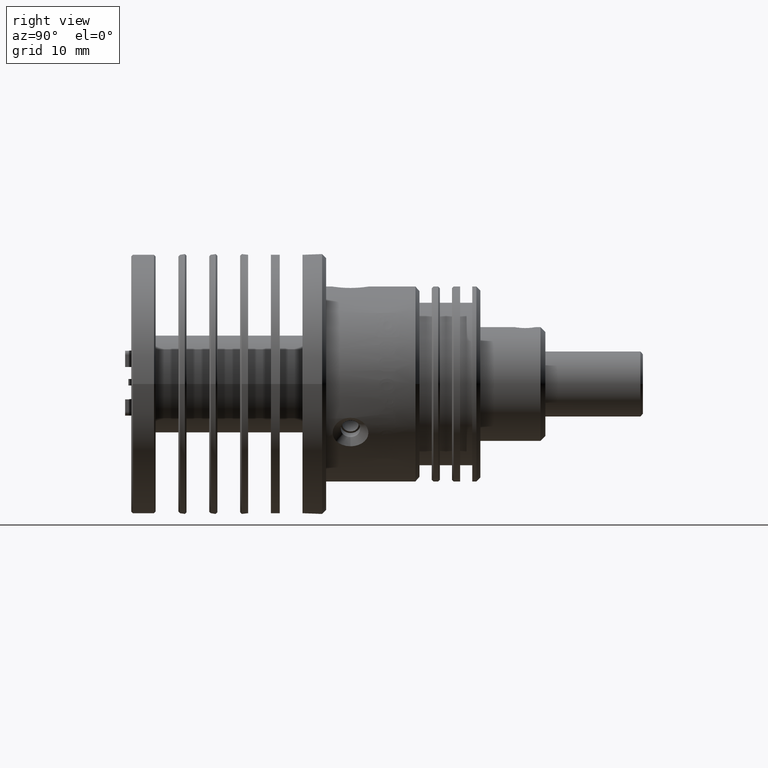
[diagram: clean part render]
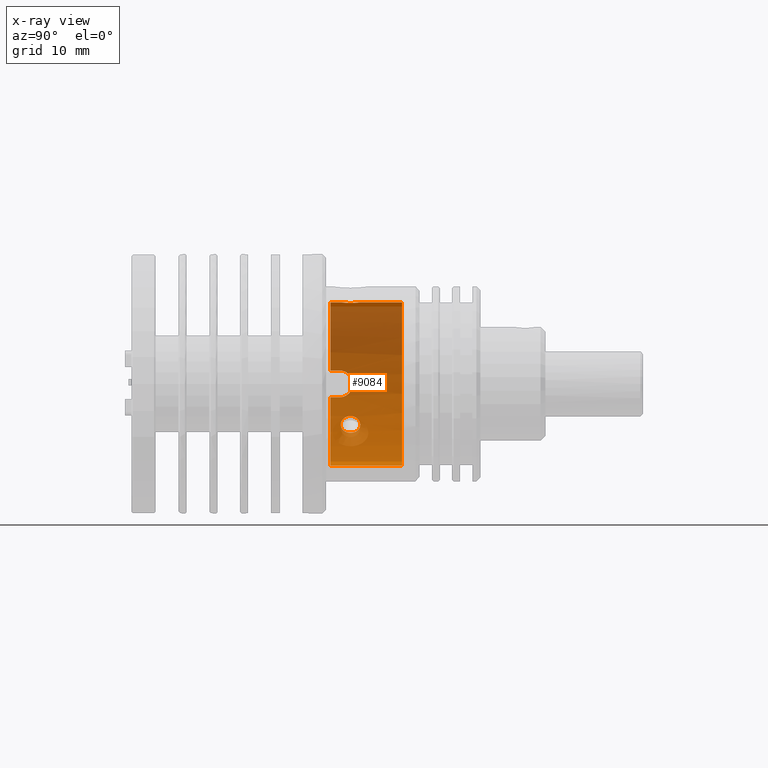
[diagram: x-ray — body ghosted, one internal face saturated and labeled with its STEP entity id]
A machine part, right view, then the same camera in x-ray: the body is ghosted and one INTERNAL B-rep face — a face not visible from any outside direction — is saturated and labeled: STEP entity #9084.
In plain terms, the highlighted cylindrical surface (partial cylindrical patch) has radius 10.05 mm, axis along (-0, -1, -0).
Its self-contained STEP definition (entity closure, byte-faithful):
#117 = DIRECTION ( 'NONE',  ( 0.0000000000000000000, 0.0000000000000000000, -1.000000000000000000 ) ) ;
#152 = CARTESIAN_POINT ( 'NONE',  ( -6.207370715078661200, -11.51504917344037600, -14.06261117191884200 ) ) ;
#215 = CARTESIAN_POINT ( 'NONE',  ( -5.811882643999053900, -11.66607838531415300, -14.71343885816804000 ) ) ;
#274 = CARTESIAN_POINT ( 'NONE',  ( -6.415873048750138500, -11.66642266347083300, -13.66722738292203600 ) ) ;
#345 = CARTESIAN_POINT ( 'NONE',  ( -6.568978985980402600, -11.97697143207793700, -13.34580724105953700 ) ) ;
#419 = CARTESIAN_POINT ( 'NONE',  ( -7.338693197479165600, -38.96480397725189000, -10.82403592165939100 ) ) ;
#421 = CARTESIAN_POINT ( 'NONE',  ( -5.968744938415772700, -11.54587870227026200, -14.46829966432983000 ) ) ;
#483 = CARTESIAN_POINT ( 'NONE',  ( -6.666355178716347800, -12.55624557464355800, -13.12385594798687900 ) ) ;
#488 = ORIENTED_EDGE ( 'NONE', *, *, #19101, .T. ) ;
#517 = CIRCLE ( 'NONE', #13036, 10.05000000000000400 ) ;
#544 = CARTESIAN_POINT ( 'NONE',  ( -6.282986362743471900, -11.54665786672637800, -13.92383883191498500 ) ) ;
#548 = FACE_BOUND ( 'NONE', #18709, .T. ) ;
#559 = VERTEX_POINT ( 'NONE', #5872 ) ;
#592 = DIRECTION ( 'NONE',  ( 0.0000000000000000000, -1.000000000000000000, 0.0000000000000000000 ) ) ;
#625 = CARTESIAN_POINT ( 'NONE',  ( -6.666355178716347800, -12.71493551001259800, -13.12385594798688100 ) ) ;
#682 = CARTESIAN_POINT ( 'NONE',  ( -7.424870113386497800, -12.74628547507355200, -8.159238505694842700 ) ) ;
#695 = CARTESIAN_POINT ( 'NONE',  ( -6.474623706379373000, -11.75581071104839200, -13.54671541087249800 ) ) ;
#741 = CARTESIAN_POINT ( 'NONE',  ( -7.365227484519424600, -13.33232449772937000, -10.65641609366932800 ) ) ;
#1012 = CARTESIAN_POINT ( 'NONE',  ( 1.374933787635822100, -12.87355300896329500, 0.8040651000781708900 ) ) ;
#1084 = CARTESIAN_POINT ( 'NONE',  ( -5.466355178716337800, -12.71493551001260200, -15.20231691706952600 ) ) ;
#1372 = EDGE_CURVE ( 'NONE', #14589, #11011, #15371, .T. ) ;
#1434 = EDGE_CURVE ( 'NONE', #14594, #18754, #10869, .T. ) ;
#1502 = CARTESIAN_POINT ( 'NONE',  ( -6.654086334014651000, -12.40053944760966000, -13.15290027558209100 ) ) ;
#1584 = EDGE_CURVE ( 'NONE', #11011, #14589, #12266, .T. ) ;
#1656 = CARTESIAN_POINT ( 'NONE',  ( -5.466355178716337800, -12.71493551001260200, -15.20231691706952600 ) ) ;
#1743 = ORIENTED_EDGE ( 'NONE', *, *, #1372, .T. ) ;
#1804 = ORIENTED_EDGE ( 'NONE', *, *, #18650, .T. ) ;
#1859 = CARTESIAN_POINT ( 'NONE',  ( 2.574933787635819800, -13.91493551001259900, 0.8759640783406168500 ) ) ;
#2181 = CARTESIAN_POINT ( 'NONE',  ( -7.338693197479165600, -15.21493551001260700, -10.82403592165938900 ) ) ;
#2206 = CARTESIAN_POINT ( 'NONE',  ( -7.467650233290799000, -12.45865961743912600, -8.739831268502014100 ) ) ;
#2288 = CARTESIAN_POINT ( 'NONE',  ( -7.338693197479167400, -13.84655211439876200, -10.82403592165938700 ) ) ;
#2558 = CARTESIAN_POINT ( 'NONE',  ( 1.406191172012213100, -13.02918513185847100, 0.8079582818856230200 ) ) ;
#2578 = DIRECTION ( 'NONE',  ( -0.0000000000000000000, -1.000000000000000000, -0.0000000000000000000 ) ) ;
#2617 = CARTESIAN_POINT ( 'NONE',  ( -5.466355178716337800, -12.87362544538163400, -15.20231691706952400 ) ) ;
#2652 = ORIENTED_EDGE ( 'NONE', *, *, #18968, .F. ) ;
#2947 = EDGE_CURVE ( 'NONE', #17684, #13642, #14601, .T. ) ;
#2954 = DIRECTION ( 'NONE',  ( -0.0000000000000000000, -1.000000000000000000, -0.0000000000000000000 ) ) ;
#3030 = EDGE_CURVE ( 'NONE', #13008, #13642, #7128, .T. ) ;
#3181 = CARTESIAN_POINT ( 'NONE',  ( -5.485373881898776300, -13.02933157241554700, -15.17716962208517200 ) ) ;
#3244 = CARTESIAN_POINT ( 'NONE',  ( -5.466355178716338700, -12.55624587122690800, -15.20231691706952600 ) ) ;
#3504 = CARTESIAN_POINT ( 'NONE',  ( -5.736696479637443800, -13.67406030897681300, -14.82484285987790400 ) ) ;
#3578 = CARTESIAN_POINT ( 'NONE',  ( -5.466355178716337800, -12.71493551001260200, -15.20231691706952600 ) ) ;
#3771 = CARTESIAN_POINT ( 'NONE',  ( -7.475079701769062400, -12.41485334725023300, -9.280565353595015700 ) ) ;
#4108 = CARTESIAN_POINT ( 'NONE',  ( 1.615622311087150600, -13.45260555257315000, 0.8306889001285554500 ) ) ;
#4220 = ORIENTED_EDGE ( 'NONE', *, *, #9268, .F. ) ;
#4630 = VECTOR ( 'NONE', #11172, 1000.000000000000000 ) ;
#5154 = B_SPLINE_CURVE_WITH_KNOTS ( 'NONE', 3,
 ( #12924, #14470, #5268, #16013, #6803, #17560, #8342, #19083, #9908, #682, #11450, #2206, #12985, #3771, #14533, #5327, #16081, #6881, #17619, #8405, #19159, #9968, #741, #11519, #2288, #13042 ),
 .UNSPECIFIED., .F., .F.,
 ( 4, 2, 2, 2, 2, 2, 2, 2, 2, 2, 2, 2, 4 ),
 ( 0.0000000000000000000, 0.0003228820284595866100, 0.0006457640569191732100, 0.0009686460853787598200, 0.001291528113838346400, 0.001937292170757515900, 0.002583056227676685500, 0.002905938256136267400, 0.003228820284595849400, 0.003874584341515014100, 0.004197466369974595600, 0.004520348398434177600, 0.005166112455353339700 ),
 .UNSPECIFIED. ) ;
#5212 = CARTESIAN_POINT ( 'NONE',  ( 1.374933787635822300, -12.71493551001260200, 0.8040651000781711100 ) ) ;
#5268 = CARTESIAN_POINT ( 'NONE',  ( -7.340496232750094700, -13.84841425600036600, -7.534767627290008800 ) ) ;
#5281 = CARTESIAN_POINT ( 'NONE',  ( 1.374933787635823000, -12.55631965701777200, 0.8040651000781711100 ) ) ;
#5299 = ORIENTED_EDGE ( 'NONE', *, *, #6031, .F. ) ;
#5327 = CARTESIAN_POINT ( 'NONE',  ( -7.466516011806267400, -12.46770474733876500, -9.601828051349853500 ) ) ;
#5457 = ORIENTED_EDGE ( 'NONE', *, *, #15625, .T. ) ;
#5661 = CARTESIAN_POINT ( 'NONE',  ( 1.970253601796777300, -13.76315245715159100, 0.8587957160093557800 ) ) ;
#5818 = DIRECTION ( 'NONE',  ( -0.0000000000000000000, -1.000000000000000000, -0.0000000000000000000 ) ) ;
#5872 = CARTESIAN_POINT ( 'NONE',  ( 2.574933787635819800, -6.364935510012617900, 0.8759640783406168500 ) ) ;
#5950 = VECTOR ( 'NONE', #2954, 1000.000000000000000 ) ;
#6022 = CARTESIAN_POINT ( 'NONE',  ( 1.406852632066896400, -12.39873483527562600, 0.8080341236212339500 ) ) ;
#6031 = EDGE_CURVE ( 'NONE', #8980, #14009, #17742, .T. ) ;
#6042 = EDGE_LOOP ( 'NONE', ( #2652, #488, #18597, #15531, #19863, #5457, #5299, #1804, #4220, #14023, #7607 ) ) ;
#6083 = CARTESIAN_POINT ( 'NONE',  ( 1.526715360699865600, -12.11025825549473500, 0.8213317106148657600 ) ) ;
#6149 = CARTESIAN_POINT ( 'NONE',  ( 1.616117523512674600, -11.97662184063268000, 0.8307371939857670600 ) ) ;
#6216 = CARTESIAN_POINT ( 'NONE',  ( 1.837260044285978100, -11.75562682605704600, 0.8494690128560509200 ) ) ;
#6276 = CARTESIAN_POINT ( 'NONE',  ( 1.970238976856668800, -11.66657642037322900, 0.8588090338238142400 ) ) ;
#6334 = CARTESIAN_POINT ( 'NONE',  ( 2.574933787635819800, -11.51493551001260600, 0.8759640783406168500 ) ) ;
#6520 = CARTESIAN_POINT ( 'NONE',  ( 2.574933787635818900, -15.21493551001261000, -19.22403592165938900 ) ) ;
#6579 = DIRECTION ( 'NONE',  ( -0.0000000000000000000, -1.000000000000000000, -0.0000000000000000000 ) ) ;
#6755 = CARTESIAN_POINT ( 'NONE',  ( 2.260683748645345500, -11.54619280607507100, 0.8721016758425723700 ) ) ;
#6803 = CARTESIAN_POINT ( 'NONE',  ( -7.352483975841132700, -13.53243828485321900, -7.608586010175440800 ) ) ;
#6881 = CARTESIAN_POINT ( 'NONE',  ( -7.442679612202145000, -12.62297017581122400, -10.00474284703834500 ) ) ;
#7128 = LINE ( 'NONE', #10251, #10729 ) ;
#7202 = AXIS2_PLACEMENT_3D ( 'NONE', #17720, #8486, #19244 ) ;
#7207 = CARTESIAN_POINT ( 'NONE',  ( 2.416318049454509300, -13.91493551001259900, 0.8759640783406169600 ) ) ;
#7356 = CARTESIAN_POINT ( 'NONE',  ( 2.574933787635818900, -38.96480397725189000, -9.174035921659385200 ) ) ;
#7441 = CARTESIAN_POINT ( 'NONE',  ( -7.338693197479165600, -15.21493551001260700, -7.524035921659381300 ) ) ;
#7607 = ORIENTED_EDGE ( 'NONE', *, *, #3030, .F. ) ;
#7748 = CARTESIAN_POINT ( 'NONE',  ( -5.737834303254101300, -11.75395981240705900, -14.82319775078275900 ) ) ;
#8083 = VERTEX_POINT ( 'NONE', #1859 ) ;
#8342 = CARTESIAN_POINT ( 'NONE',  ( -7.372718291776806200, -13.23804849774932400, -7.742125252744237700 ) ) ;
#8405 = CARTESIAN_POINT ( 'NONE',  ( -7.398213353866208500, -12.97430351788353200, -10.41694598351344500 ) ) ;
#8486 = DIRECTION ( 'NONE',  ( 0.0000000000000000000, -1.000000000000000000, 0.0000000000000000000 ) ) ;
#8608 = CARTESIAN_POINT ( 'NONE',  ( 1.374933787635822300, -12.71493551001260200, 0.8040651000781711100 ) ) ;
#8953 = CARTESIAN_POINT ( 'NONE',  ( 2.574933787635819800, -15.21493551001261000, 0.8759640783406186200 ) ) ;
#8980 = VERTEX_POINT ( 'NONE', #10259 ) ;
#9084 = ADVANCED_FACE ( 'NONE', ( #548, #12825 ), #15006, .F. ) ;
#9109 = LINE ( 'NONE', #16050, #12691 ) ;
#9121 = CARTESIAN_POINT ( 'NONE',  ( 2.416316450176763600, -11.51493551001260900, 0.8759640783406166300 ) ) ;
#9268 = EDGE_CURVE ( 'NONE', #17684, #12152, #13766, .T. ) ;
#9343 = DIRECTION ( 'NONE',  ( -0.0000000000000000000, -1.000000000000000000, -0.0000000000000000000 ) ) ;
#9377 = CARTESIAN_POINT ( 'NONE',  ( -5.485437508883137500, -12.40015281160326800, -15.17708462709722800 ) ) ;
#9506 = CARTESIAN_POINT ( 'NONE',  ( -5.557310004346492200, -12.10966296454391000, -15.07935471960508200 ) ) ;
#9839 = CARTESIAN_POINT ( 'NONE',  ( 2.574933787635818900, -15.21493551001261000, -9.174035921659385200 ) ) ;
#9908 = CARTESIAN_POINT ( 'NONE',  ( -7.398237154016385400, -12.97414286456995600, -7.931373726140625600 ) ) ;
#9936 = DIRECTION ( 'NONE',  ( -0.0000000000000000000, -1.000000000000000000, -0.0000000000000000000 ) ) ;
#9968 = CARTESIAN_POINT ( 'NONE',  ( -7.372907676438079400, -13.23581504310088200, -10.60462657288267400 ) ) ;
#10251 = CARTESIAN_POINT ( 'NONE',  ( 2.574933787635818900, -38.96480397725189000, -19.22403592165938900 ) ) ;
#10259 = CARTESIAN_POINT ( 'NONE',  ( -7.338693197479165600, -14.06493551001259600, -7.524035921659380400 ) ) ;
#10281 = EDGE_CURVE ( 'NONE', #8083, #11689, #9109, .T. ) ;
#10729 = VECTOR ( 'NONE', #2578, 1000.000000000000000 ) ;
#10857 = CARTESIAN_POINT ( 'NONE',  ( -6.050740540244494700, -11.51482247484264600, -14.33395672969460600 ) ) ;
#10869 = B_SPLINE_CURVE_WITH_KNOTS ( 'NONE', 3,
 ( #6334, #9121, #6755, #6276, #6216, #6149, #6083, #6022, #5281, #5212 ),
 .UNSPECIFIED., .F., .F.,
 ( 4, 2, 2, 2, 4 ),
 ( -0.001876242604753247200, -0.001407181953564934400, -0.0009381213023766218800, -0.0004690606511883093100, 3.469446951953614200E-018 ),
 .UNSPECIFIED. ) ;
#11011 = VERTEX_POINT ( 'NONE', #14869 ) ;
#11172 = DIRECTION ( 'NONE',  ( 0.0000000000000000000, 1.000000000000000000, 0.0000000000000000000 ) ) ;
#11367 = DIRECTION ( 'NONE',  ( 0.0000000000000000000, 0.0000000000000000000, -1.000000000000000000 ) ) ;
#11389 = CARTESIAN_POINT ( 'NONE',  ( -6.654044539688083400, -13.02971820842193700, -13.15299787566088200 ) ) ;
#11450 = CARTESIAN_POINT ( 'NONE',  ( -7.442620261398961800, -12.62340245419140300, -8.342989368895324300 ) ) ;
#11466 = CARTESIAN_POINT ( 'NONE',  ( -6.666355178716348600, -12.87362574196554200, -13.12385594798688100 ) ) ;
#11519 = CARTESIAN_POINT ( 'NONE',  ( -7.346160411477386600, -13.63162127861400900, -10.78071518511396600 ) ) ;
#11689 = VERTEX_POINT ( 'NONE', #8953 ) ;
#11986 = CARTESIAN_POINT ( 'NONE',  ( -5.609882540552092700, -13.45289958794726500, -15.00701101390006400 ) ) ;
#12149 = LINE ( 'NONE', #14233, #15762 ) ;
#12152 = VERTEX_POINT ( 'NONE', #15028 ) ;
#12169 = CARTESIAN_POINT ( 'NONE',  ( -7.338693197479163800, -38.96480397725189000, -7.524035921659376000 ) ) ;
#12187 = CARTESIAN_POINT ( 'NONE',  ( -6.666355178716347800, -12.71493551001259800, -13.12385594798688100 ) ) ;
#12266 = B_SPLINE_CURVE_WITH_KNOTS ( 'NONE', 3,
 ( #625, #483, #1502, #16027, #345, #695, #274, #544, #152, #10857, #421, #215, #7748, #14005, #9506, #9377, #3244, #3578 ),
 .UNSPECIFIED., .F., .F.,
 ( 4, 2, 2, 2, 2, 2, 2, 2, 4 ),
 ( 0.0000000000000000000, 0.0004692797284497117600, 0.0009385594568994235100, 0.001407839185349135300, 0.001877118913798847000, 0.002346398642248558600, 0.002815678370698270500, 0.003284958099147982500, 0.003754237827597694000 ),
 .UNSPECIFIED. ) ;
#12313 = CARTESIAN_POINT ( 'NONE',  ( -6.605344204822058500, -13.32020805548128800, -13.26410623631160000 ) ) ;
#12386 = CARTESIAN_POINT ( 'NONE',  ( -6.473767911919308600, -13.67591120761814400, -13.54852334957712000 ) ) ;
#12452 = CARTESIAN_POINT ( 'NONE',  ( -6.569374516041861500, -13.45212676505741500, -13.34497926241979500 ) ) ;
#12530 = AXIS2_PLACEMENT_3D ( 'NONE', #7356, #5818, #13534 ) ;
#12572 = CARTESIAN_POINT ( 'NONE',  ( -6.281872470877417000, -13.88399231775494500, -13.92594686885759400 ) ) ;
#12691 = VECTOR ( 'NONE', #9936, 1000.000000000000000 ) ;
#12721 = CARTESIAN_POINT ( 'NONE',  ( -6.206525877578719100, -13.91504854518255900, -14.06412861035747500 ) ) ;
#12784 = CARTESIAN_POINT ( 'NONE',  ( -6.049848818757931600, -13.91482184658483100, -14.33544709965094400 ) ) ;
#12825 = FACE_OUTER_BOUND ( 'NONE', #6042, .T. ) ;
#12863 = CARTESIAN_POINT ( 'NONE',  ( -6.415738092996187800, -13.76379263471105200, -13.66753054007769600 ) ) ;
#12924 = CARTESIAN_POINT ( 'NONE',  ( -7.338693197479165600, -14.06493551001259600, -7.524035921659380400 ) ) ;
#12936 = CARTESIAN_POINT ( 'NONE',  ( -5.967476270804382900, -13.88321315329882900, -14.47031834145420800 ) ) ;
#12985 = CARTESIAN_POINT ( 'NONE',  ( -7.475038994684490800, -12.41510129047262000, -8.957181816383242200 ) ) ;
#12997 = CARTESIAN_POINT ( 'NONE',  ( -5.811687580077884400, -13.76344835655437000, -14.71370731185718000 ) ) ;
#13008 = VERTEX_POINT ( 'NONE', #19070 ) ;
#13036 = AXIS2_PLACEMENT_3D ( 'NONE', #9839, #592, #11367 ) ;
#13042 = CARTESIAN_POINT ( 'NONE',  ( -7.338693197479165600, -14.06493551001259600, -10.82403592165938700 ) ) ;
#13317 = CARTESIAN_POINT ( 'NONE',  ( 1.526573199099196400, -13.31962733467051900, 0.8213183820951343000 ) ) ;
#13534 = DIRECTION ( 'NONE',  ( 0.0000000000000000000, 0.0000000000000000000, -1.000000000000000000 ) ) ;
#13642 = VERTEX_POINT ( 'NONE', #6520 ) ;
#13766 = LINE ( 'NONE', #419, #4630 ) ;
#13783 = CARTESIAN_POINT ( 'NONE',  ( -5.557196582325330400, -13.31987878702463300, -15.07951046641033900 ) ) ;
#14005 = CARTESIAN_POINT ( 'NONE',  ( -5.609363255047017400, -11.97774425496778700, -15.00776754230111700 ) ) ;
#14009 = VERTEX_POINT ( 'NONE', #7441 ) ;
#14023 = ORIENTED_EDGE ( 'NONE', *, *, #2947, .T. ) ;
#14233 = CARTESIAN_POINT ( 'NONE',  ( 2.574933787635819800, -38.96480397725189000, 0.8759640783406168500 ) ) ;
#14470 = CARTESIAN_POINT ( 'NONE',  ( -7.338693197479169200, -13.95574385449566700, -7.524035921659384800 ) ) ;
#14533 = CARTESIAN_POINT ( 'NONE',  ( -7.473302003880093900, -12.42558363917539000, -9.390086052507031800 ) ) ;
#14589 = VERTEX_POINT ( 'NONE', #1656 ) ;
#14594 = VERTEX_POINT ( 'NONE', #15494 ) ;
#14601 = CIRCLE ( 'NONE', #7202, 10.05000000000000400 ) ;
#14869 = CARTESIAN_POINT ( 'NONE',  ( -6.666355178716347800, -12.71493551001259800, -13.12385594798688100 ) ) ;
#14895 = CARTESIAN_POINT ( 'NONE',  ( 1.836615958051839700, -13.67374851745861600, 0.8494207700840440400 ) ) ;
#15006 = CYLINDRICAL_SURFACE ( 'NONE', #12530, 10.05000000000000400 ) ;
#15028 = CARTESIAN_POINT ( 'NONE',  ( -7.338693197479165600, -14.06493551001259600, -10.82403592165938700 ) ) ;
#15371 = B_SPLINE_CURVE_WITH_KNOTS ( 'NONE', 3,
 ( #1084, #2617, #3181, #13783, #11986, #3504, #12997, #12936, #12784, #12721, #12572, #12863, #12386, #12452, #12313, #11389, #11466, #12187 ),
 .UNSPECIFIED., .F., .F.,
 ( 4, 2, 2, 2, 2, 2, 2, 2, 4 ),
 ( 0.003754237827597694000, 0.004223518433108780500, 0.004692799038619866100, 0.005162079644130951700, 0.005631360249642038100, 0.006100640855153124600, 0.006569921460664210200, 0.007039202066175295800, 0.007508482671686382200 ),
 .UNSPECIFIED. ) ;
#15494 = CARTESIAN_POINT ( 'NONE',  ( 2.574933787635819800, -11.51493551001260600, 0.8759640783406168500 ) ) ;
#15531 = ORIENTED_EDGE ( 'NONE', *, *, #19526, .T. ) ;
#15625 = EDGE_CURVE ( 'NONE', #11689, #14009, #517, .T. ) ;
#15762 = VECTOR ( 'NONE', #6579, 1000.000000000000000 ) ;
#15975 = B_SPLINE_CURVE_WITH_KNOTS ( 'NONE', 3,
 ( #19431, #1012, #2558, #13317, #4108, #14895, #5661, #16390, #7207, #17961 ),
 .UNSPECIFIED., .F., .F.,
 ( 4, 2, 2, 2, 4 ),
 ( 3.469446951953614200E-018, 0.0004690655186282194300, 0.0009381310372564353800, 0.001407196555884651300, 0.001876262074512867300 ),
 .UNSPECIFIED. ) ;
#16013 = CARTESIAN_POINT ( 'NONE',  ( -7.347350738913798200, -13.63731512921351400, -7.576781150406857200 ) ) ;
#16027 = CARTESIAN_POINT ( 'NONE',  ( -6.605422374501385400, -12.10999223300056800, -13.26393013655729900 ) ) ;
#16050 = CARTESIAN_POINT ( 'NONE',  ( 2.574933787635819800, -38.96480397725189000, 0.8759640783406168500 ) ) ;
#16081 = CARTESIAN_POINT ( 'NONE',  ( -7.461542917471012600, -12.49887800747371700, -9.704765046514477700 ) ) ;
#16390 = CARTESIAN_POINT ( 'NONE',  ( 2.258732613477388200, -13.88301671989337800, 0.8720262727735161900 ) ) ;
#16983 = CIRCLE ( 'NONE', #18684, 10.05000000000000400 ) ;
#17560 = CARTESIAN_POINT ( 'NONE',  ( -7.365196301838533800, -13.33273605639488000, -7.691446740433031300 ) ) ;
#17619 = CARTESIAN_POINT ( 'NONE',  ( -7.425150924389004800, -12.74396950269295900, -10.18634173709258000 ) ) ;
#17684 = VERTEX_POINT ( 'NONE', #2181 ) ;
#17720 = CARTESIAN_POINT ( 'NONE',  ( 2.574933787635818900, -15.21493551001261000, -9.174035921659385200 ) ) ;
#17742 = LINE ( 'NONE', #12169, #5950 ) ;
#17961 = CARTESIAN_POINT ( 'NONE',  ( 2.574933787635819800, -13.91493551001259900, 0.8759640783406168500 ) ) ;
#18535 = CARTESIAN_POINT ( 'NONE',  ( 2.574933787635818900, -6.364935510012617900, -9.174035921659385200 ) ) ;
#18597 = ORIENTED_EDGE ( 'NONE', *, *, #1434, .T. ) ;
#18650 = EDGE_CURVE ( 'NONE', #8980, #12152, #5154, .T. ) ;
#18684 = AXIS2_PLACEMENT_3D ( 'NONE', #18535, #9343, #117 ) ;
#18709 = EDGE_LOOP ( 'NONE', ( #19415, #1743 ) ) ;
#18754 = VERTEX_POINT ( 'NONE', #8608 ) ;
#18968 = EDGE_CURVE ( 'NONE', #559, #13008, #16983, .T. ) ;
#19070 = CARTESIAN_POINT ( 'NONE',  ( 2.574933787635818900, -6.364935510012617900, -19.22403592165938900 ) ) ;
#19083 = CARTESIAN_POINT ( 'NONE',  ( -7.389214611088064500, -13.05884726845567400, -7.861825288794522100 ) ) ;
#19101 = EDGE_CURVE ( 'NONE', #559, #14594, #12149, .T. ) ;
#19159 = CARTESIAN_POINT ( 'NONE',  ( -7.389365098990664300, -13.05739233161789900, -10.48509927012492900 ) ) ;
#19244 = DIRECTION ( 'NONE',  ( 0.0000000000000000000, 0.0000000000000000000, -1.000000000000000000 ) ) ;
#19415 = ORIENTED_EDGE ( 'NONE', *, *, #1584, .T. ) ;
#19431 = CARTESIAN_POINT ( 'NONE',  ( 1.374933787635822300, -12.71493551001260200, 0.8040651000781711100 ) ) ;
#19526 = EDGE_CURVE ( 'NONE', #18754, #8083, #15975, .T. ) ;
#19863 = ORIENTED_EDGE ( 'NONE', *, *, #10281, .T. ) ;